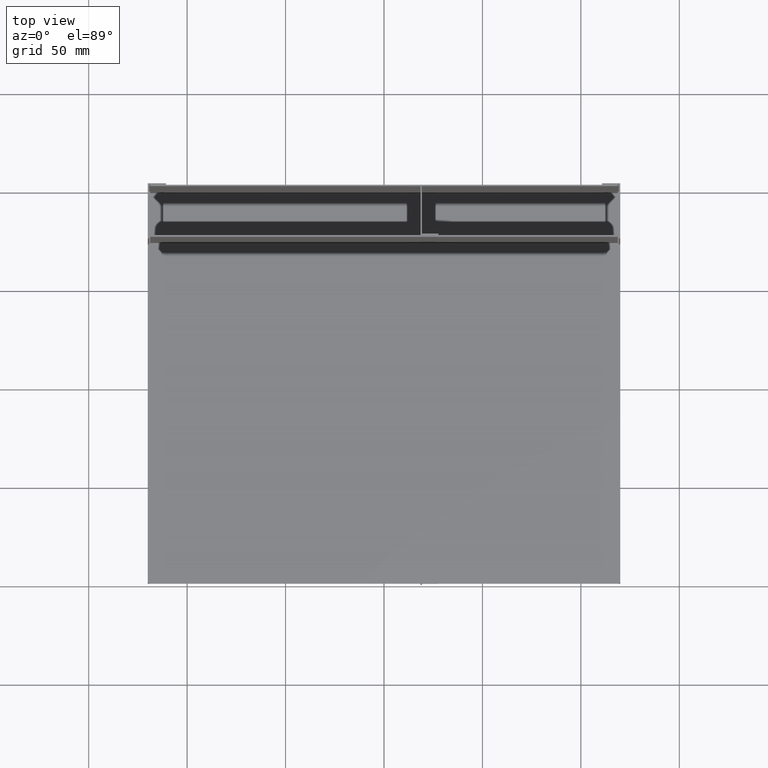
[diagram: clean part render]
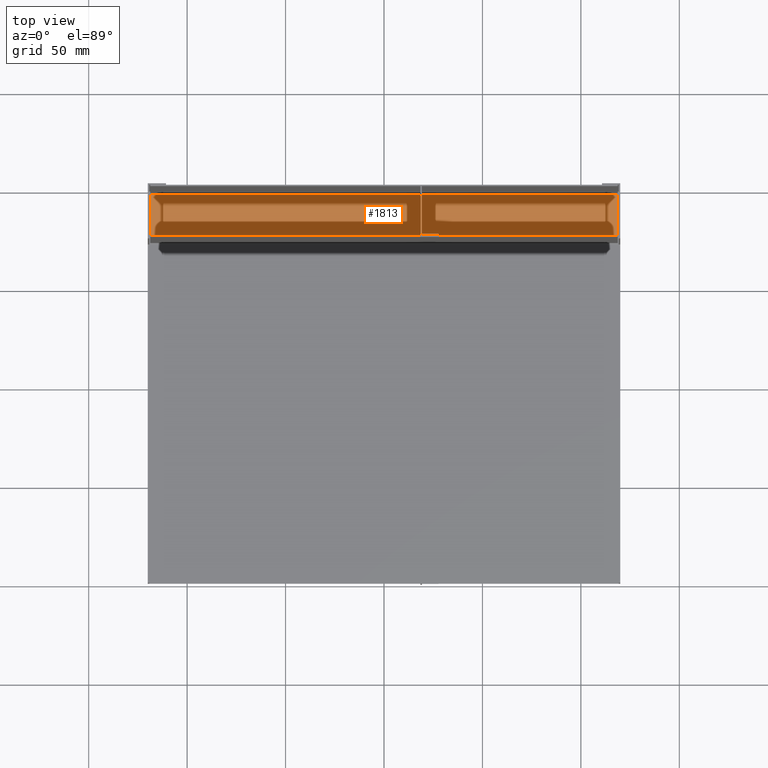
[diagram: same view with one face highlighted and labeled with its STEP entity id]
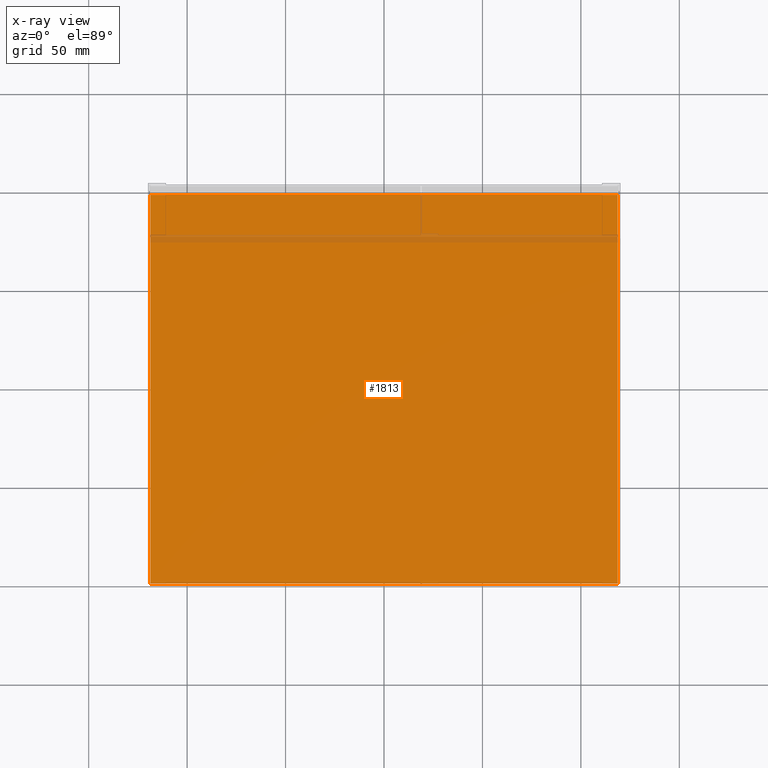
[diagram: x-ray of the same camera — body ghosted, the highlighted face saturated]
A machine part, top view. The second image highlights one B-rep face of the part: STEP entity #1813.
The next image is the same camera in x-ray: the body ghosted, the highlighted face saturated — about 2% of this face is hidden behind the body in this view.
In plain terms, the highlighted planar face has unit normal (0, 0, 1).
Its self-contained STEP definition (entity closure, byte-faithful):
#1603=DIRECTION('',(0.E0,-1.E0,0.E0));
#1604=VECTOR('',#1603,1.974700775253E2);
#1605=CARTESIAN_POINT('',(1.1875E2,-1.079922474672E0,0.E0));
#1606=LINE('',#1605,#1604);
#1610=DIRECTION('',(-1.E0,0.E0,0.E0));
#1611=VECTOR('',#1610,2.375E2);
#1612=CARTESIAN_POINT('',(1.1875E2,-1.9855E2,0.E0));
#1613=LINE('',#1612,#1611);
#1617=DIRECTION('',(0.E0,1.E0,0.E0));
#1618=VECTOR('',#1617,1.974700775253E2);
#1619=CARTESIAN_POINT('',(-1.1875E2,-1.9855E2,0.E0));
#1620=LINE('',#1619,#1618);
#1624=DIRECTION('',(1.E0,0.E0,0.E0));
#1625=VECTOR('',#1624,2.375E2);
#1626=CARTESIAN_POINT('',(-1.1875E2,-1.079922474672E0,0.E0));
#1627=LINE('',#1626,#1625);
#1684=CARTESIAN_POINT('',(1.1875E2,-1.9855E2,0.E0));
#1685=CARTESIAN_POINT('',(-1.1875E2,-1.9855E2,0.E0));
#1686=VERTEX_POINT('',#1684);
#1687=VERTEX_POINT('',#1685);
#1692=CARTESIAN_POINT('',(1.1875E2,-1.079922474672E0,0.E0));
#1693=VERTEX_POINT('',#1692);
#1694=CARTESIAN_POINT('',(-1.1875E2,-1.079922474672E0,0.E0));
#1695=VERTEX_POINT('',#1694);
#1801=CARTESIAN_POINT('',(-1.1875E2,-1.9855E2,0.E0));
#1802=DIRECTION('',(0.E0,0.E0,1.E0));
#1803=DIRECTION('',(1.E0,0.E0,0.E0));
#1804=AXIS2_PLACEMENT_3D('',#1801,#1802,#1803);
#1805=PLANE('',#1804);
#1806=ORIENTED_EDGE('',*,*,#1732,.T.);
#1808=ORIENTED_EDGE('',*,*,#1807,.T.);
#1809=ORIENTED_EDGE('',*,*,#1778,.T.);
#1810=ORIENTED_EDGE('',*,*,#1763,.T.);
#1811=EDGE_LOOP('',(#1806,#1808,#1809,#1810));
#1812=FACE_OUTER_BOUND('',#1811,.F.);
#1732=EDGE_CURVE('',#1693,#1686,#1606,.T.);
#1763=EDGE_CURVE('',#1695,#1693,#1627,.T.);
#1778=EDGE_CURVE('',#1687,#1695,#1620,.T.);
#1807=EDGE_CURVE('',#1686,#1687,#1613,.T.);
#1813=ADVANCED_FACE('',(#1812),#1805,.T.);